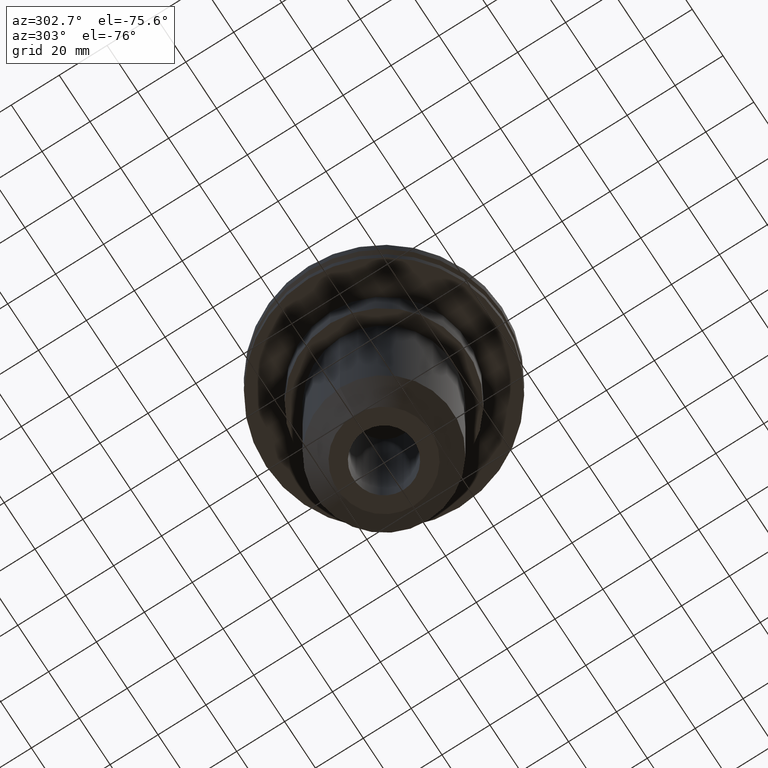
[diagram: clean part render]
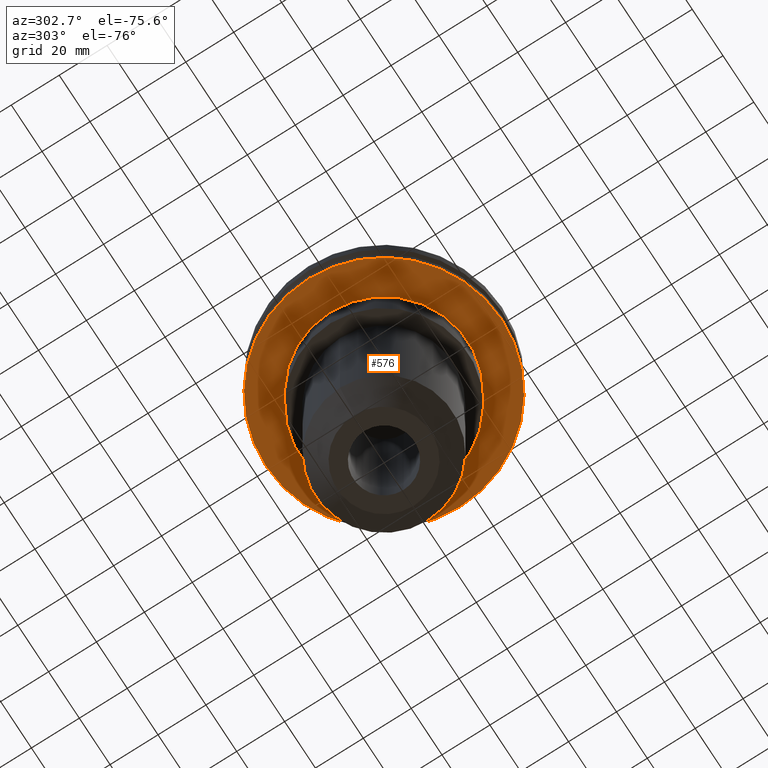
[diagram: same view with one face highlighted and labeled with its STEP entity id]
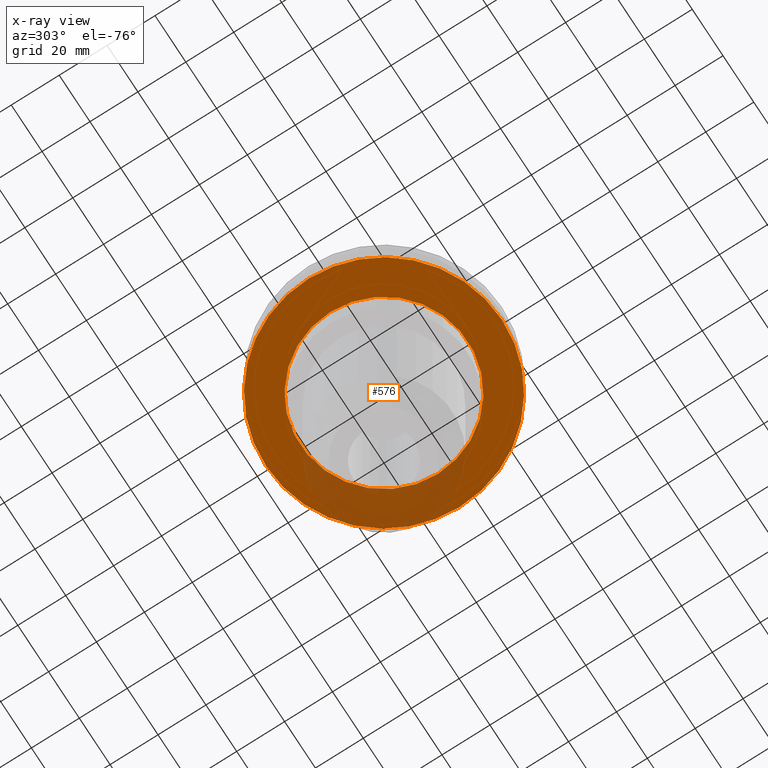
[diagram: x-ray of the same camera — body ghosted, the highlighted face saturated]
A machine part, auxiliary view. The second image highlights one B-rep face of the part: STEP entity #576.
The next image is the same camera in x-ray: the body ghosted, the highlighted face saturated — about 21% of this face is hidden behind the body in this view.
In plain terms, the highlighted planar face has unit normal (0, -0, 1).
Its self-contained STEP definition (entity closure, byte-faithful):
#27 = DIRECTION ( 'NONE',  ( 1.000000000000000000, 0.000000000000000000, 0.000000000000000000 ) ) ;
#41 = FACE_BOUND ( 'NONE', #454, .T. ) ;
#54 = CARTESIAN_POINT ( 'NONE',  ( 0.000000000000000000, 49.21499999999998920, -19.04999999999999716 ) ) ;
#61 = AXIS2_PLACEMENT_3D ( 'NONE', #231, #696, #27 ) ;
#67 = CARTESIAN_POINT ( 'NONE',  ( 0.000000000000000000, 0.000000000000000000, -19.04999999999999716 ) ) ;
#80 = DIRECTION ( 'NONE',  ( 1.000000000000000000, 0.000000000000000000, 0.000000000000000000 ) ) ;
#98 = VERTEX_POINT ( 'NONE', #187 ) ;
#100 = DIRECTION ( 'NONE',  ( -0.000000000000000000, -0.000000000000000000, 1.000000000000000000 ) ) ;
#103 = AXIS2_PLACEMENT_3D ( 'NONE', #751, #100, #370 ) ;
#114 = FACE_OUTER_BOUND ( 'NONE', #740, .T. ) ;
#119 = DIRECTION ( 'NONE',  ( 0.000000000000000000, -0.000000000000000000, 1.000000000000000000 ) ) ;
#187 = CARTESIAN_POINT ( 'NONE',  ( 34.92499999999999716, 0.000000000000000000, -19.04999999999999716 ) ) ;
#193 = DIRECTION ( 'NONE',  ( 1.000000000000000000, 0.000000000000000000, 0.000000000000000000 ) ) ;
#207 = EDGE_CURVE ( 'NONE', #745, #387, #288, .T. ) ;
#208 = CARTESIAN_POINT ( 'NONE',  ( 0.000000000000000000, 0.000000000000000000, -19.04999999999999716 ) ) ;
#230 = CIRCLE ( 'NONE', #61, 49.21499999999998920 ) ;
#231 = CARTESIAN_POINT ( 'NONE',  ( 0.000000000000000000, 0.000000000000000000, -19.04999999999999716 ) ) ;
#238 = ORIENTED_EDGE ( 'NONE', *, *, #424, .F. ) ;
#275 = AXIS2_PLACEMENT_3D ( 'NONE', #67, #413, #80 ) ;
#288 = CIRCLE ( 'NONE', #275, 49.21499999999998920 ) ;
#370 = DIRECTION ( 'NONE',  ( 1.000000000000000000, 0.000000000000000000, 0.000000000000000000 ) ) ;
#387 = VERTEX_POINT ( 'NONE', #699 ) ;
#413 = DIRECTION ( 'NONE',  ( -0.000000000000000000, -0.000000000000000000, 1.000000000000000000 ) ) ;
#424 = EDGE_CURVE ( 'NONE', #387, #745, #230, .T. ) ;
#454 = EDGE_LOOP ( 'NONE', ( #822, #747 ) ) ;
#467 = CIRCLE ( 'NONE', #103, 34.92499999999999716 ) ;
#476 = CARTESIAN_POINT ( 'NONE',  ( 49.21499999999998920, 0.000000000000000000, -19.04999999999999716 ) ) ;
#478 = AXIS2_PLACEMENT_3D ( 'NONE', #208, #545, #541 ) ;
#491 = AXIS2_PLACEMENT_3D ( 'NONE', #54, #119, #193 ) ;
#506 = CIRCLE ( 'NONE', #478, 34.92499999999999716 ) ;
#541 = DIRECTION ( 'NONE',  ( 1.000000000000000000, 0.000000000000000000, 0.000000000000000000 ) ) ;
#545 = DIRECTION ( 'NONE',  ( -0.000000000000000000, -0.000000000000000000, 1.000000000000000000 ) ) ;
#576 = ADVANCED_FACE ( 'NONE', ( #114, #41 ), #786, .F. ) ;
#643 = EDGE_CURVE ( 'NONE', #798, #98, #506, .T. ) ;
#695 = ORIENTED_EDGE ( 'NONE', *, *, #207, .F. ) ;
#696 = DIRECTION ( 'NONE',  ( -0.000000000000000000, -0.000000000000000000, 1.000000000000000000 ) ) ;
#699 = CARTESIAN_POINT ( 'NONE',  ( -49.21499999999998920, 6.027099222003697037E-15, -19.04999999999999716 ) ) ;
#740 = EDGE_LOOP ( 'NONE', ( #695, #238 ) ) ;
#745 = VERTEX_POINT ( 'NONE', #476 ) ;
#747 = ORIENTED_EDGE ( 'NONE', *, *, #643, .T. ) ;
#751 = CARTESIAN_POINT ( 'NONE',  ( 0.000000000000000000, 0.000000000000000000, -19.04999999999999716 ) ) ;
#786 = PLANE ( 'NONE',  #491 ) ;
#790 = CARTESIAN_POINT ( 'NONE',  ( -34.92499999999999716, 4.277078946022130887E-15, -19.04999999999999716 ) ) ;
#798 = VERTEX_POINT ( 'NONE', #790 ) ;
#822 = ORIENTED_EDGE ( 'NONE', *, *, #845, .T. ) ;
#845 = EDGE_CURVE ( 'NONE', #98, #798, #467, .T. ) ;